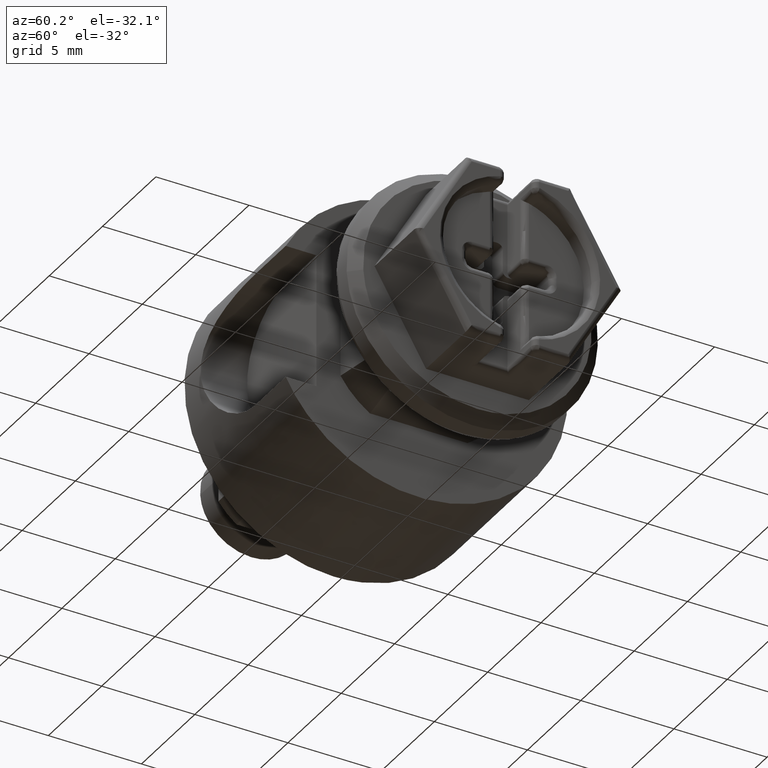
[diagram: clean part render]
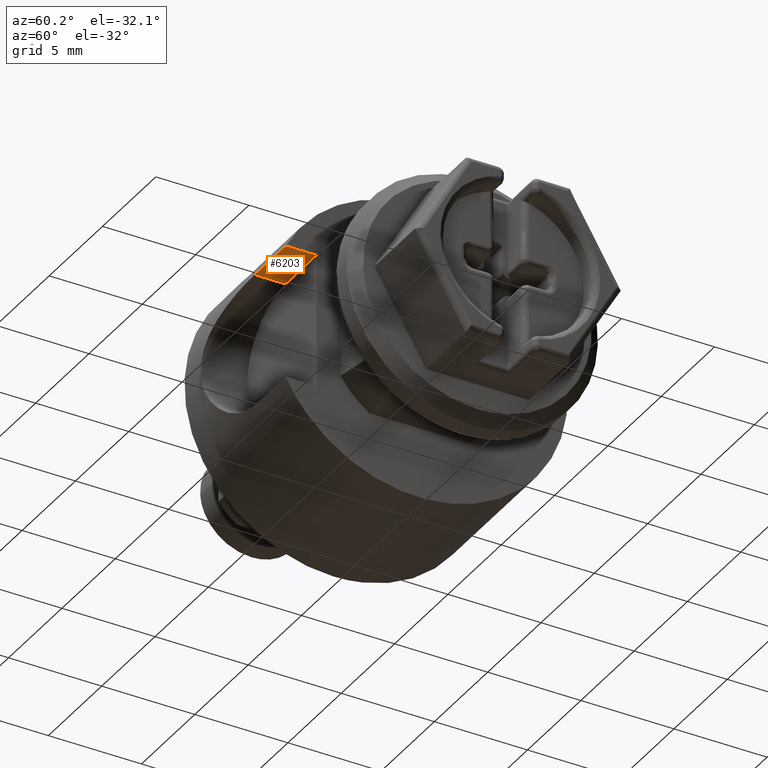
[diagram: same view with one face highlighted and labeled with its STEP entity id]
A machine part, auxiliary view. The second image highlights one B-rep face of the part: STEP entity #6203.
In plain terms, the highlighted face is a freeform B-spline surface patch.
Its self-contained STEP definition (entity closure, byte-faithful):
#5473=CARTESIAN_POINT('',(13.100000958354940,-7.144233516397451,3.599990769829465));
#5474=VERTEX_POINT('',#5473);
#5542=CARTESIAN_POINT('',(16.000001096102999,-7.144230348405500,3.599997056748165));
#5543=VERTEX_POINT('',#5542);
#5544=CARTESIAN_POINT('',(13.100000958354940,-7.144233516397451,3.599990769829465));
#5545=CARTESIAN_POINT('',(16.000001096102999,-7.144230348405500,3.599997056748165));
#5546=QUASI_UNIFORM_CURVE('',1,(#5544,#5545),.UNSPECIFIED.,.F.,.U.);
#5547=EDGE_CURVE('',#5474,#5543,#5546,.T.);
#6096=CARTESIAN_POINT('',(13.100000958354940,-5.500000379979660,3.599990769829465));
#6097=VERTEX_POINT('',#6096);
#6098=CARTESIAN_POINT('',(16.000001096102999,-5.500000379979660,3.599997056748165));
#6099=VERTEX_POINT('',#6098);
#6100=CARTESIAN_POINT('',(13.100000958354940,-5.500000379979660,3.599990769829465));
#6101=CARTESIAN_POINT('',(16.000001096102999,-5.500000379979660,3.599997056748165));
#6102=QUASI_UNIFORM_CURVE('',1,(#6100,#6101),.UNSPECIFIED.,.F.,.U.);
#6103=EDGE_CURVE('',#6097,#6099,#6102,.T.);
#6157=CARTESIAN_POINT('',(13.100000958354940,-5.500000379979660,3.599990769829465));
#6158=CARTESIAN_POINT('',(13.100000958354940,-7.144233516397451,3.599990769829465));
#6159=QUASI_UNIFORM_CURVE('',1,(#6157,#6158),.UNSPECIFIED.,.F.,.U.);
#6160=EDGE_CURVE('',#6097,#5474,#6159,.T.);
#6188=CARTESIAN_POINT('',(16.144856947781118,-7.226363153153816,3.599997056748165));
#6189=CARTESIAN_POINT('',(12.955146273437791,-7.226363153153817,3.599997056748165));
#6190=CARTESIAN_POINT('',(16.144856947781118,-5.417871007833909,3.599997056748165));
#6191=CARTESIAN_POINT('',(12.955146273437791,-5.417871007833910,3.599997056748165));
#6192=B_SPLINE_SURFACE_WITH_KNOTS('',1,1,((#6188,#6190),(#6189,#6191)),.UNSPECIFIED.,.F.,.F.,.U.,(2,2),(2,2),(0.0,3.189710674343326),(0.041708236230165,0.958291629659385),.UNSPECIFIED.);
#6193=ORIENTED_EDGE('',*,*,#6160,.F.);
#6194=ORIENTED_EDGE('',*,*,#6103,.T.);
#6195=CARTESIAN_POINT('',(16.000001096102999,-5.500000379979660,3.599997056748165));
#6196=CARTESIAN_POINT('',(16.000001096102999,-7.144230348405500,3.599997056748165));
#6197=QUASI_UNIFORM_CURVE('',1,(#6195,#6196),.UNSPECIFIED.,.F.,.U.);
#6198=EDGE_CURVE('',#6099,#5543,#6197,.T.);
#6199=ORIENTED_EDGE('',*,*,#6198,.T.);
#6200=ORIENTED_EDGE('',*,*,#5547,.F.);
#6201=EDGE_LOOP('',(#6193,#6194,#6199,#6200));
#6202=FACE_OUTER_BOUND('',#6201,.T.);
#6203=ADVANCED_FACE('',(#6202),#6192,.T.);